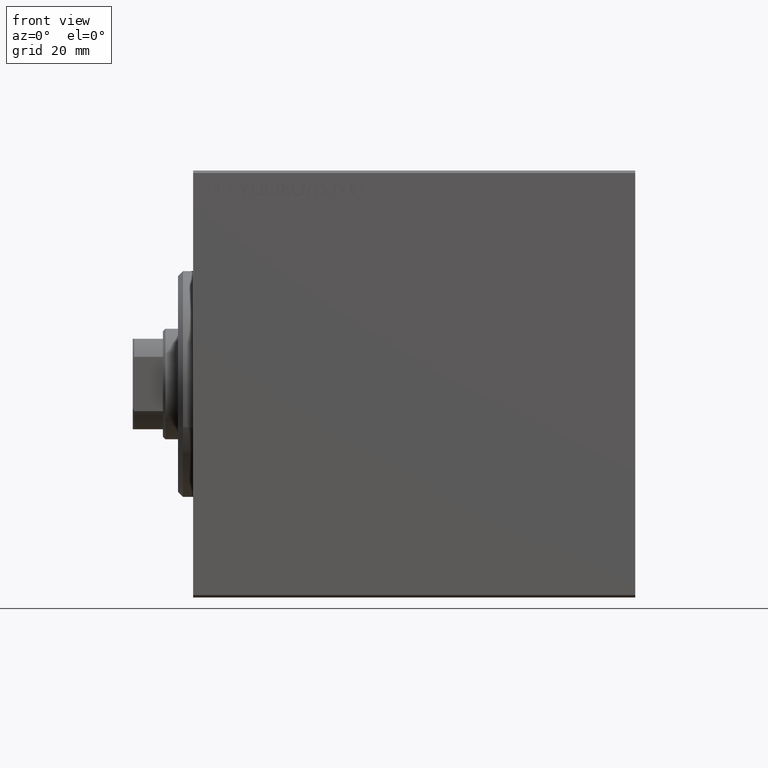
[diagram: clean part render]
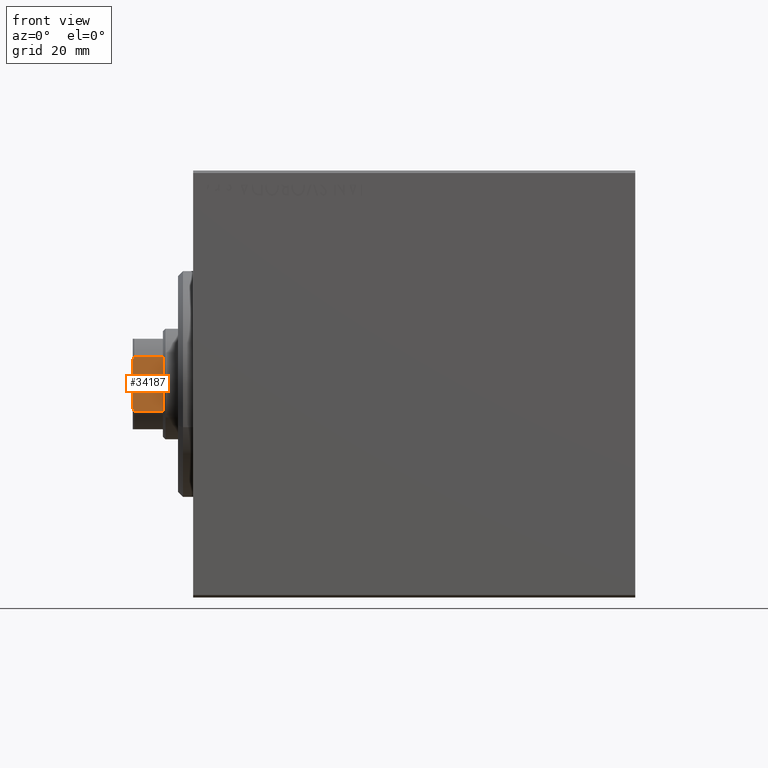
[diagram: same view with one face highlighted and labeled with its STEP entity id]
A machine part, front view. The second image highlights one B-rep face of the part: STEP entity #34187.
In plain terms, the highlighted planar face has unit normal (0, 1, 0).
Its self-contained STEP definition (entity closure, byte-faithful):
#371 = EDGE_CURVE ( 'NONE', #12914, #41400, #19274, .T. ) ;
#729 = EDGE_CURVE ( 'NONE', #8654, #41400, #8915, .T. ) ;
#1124 = CARTESIAN_POINT ( 'NONE',  ( 4.799999999999974065, -9.000000000000001776, 88.00000000000000000 ) ) ;
#1940 = CARTESIAN_POINT ( 'NONE',  ( -8.999999999999998224, -9.000000000000001776, 88.00000000000000000 ) ) ;
#3077 = ORIENTED_EDGE ( 'NONE', *, *, #32434, .T. ) ;
#5268 = LINE ( 'NONE', #5491, #18802 ) ;
#5491 = CARTESIAN_POINT ( 'NONE',  ( -5.408326913195988794, -8.999999999999998224, -0.001000000000001000089 ) ) ;
#5796 = DIRECTION ( 'NONE',  ( 0.000000000000000000, 1.000000000000000000, 0.000000000000000000 ) ) ;
#5969 = ORIENTED_EDGE ( 'NONE', *, *, #729, .T. ) ;
#8489 = EDGE_CURVE ( 'NONE', #25368, #8654, #9348, .T. ) ;
#8654 = VERTEX_POINT ( 'NONE', #40914 ) ;
#8729 = VECTOR ( 'NONE', #39970, 1000.000000000000000 ) ;
#8915 = B_SPLINE_CURVE_WITH_KNOTS ( 'NONE', 3,
 ( #41873, #27864, #10959, #38755 ),
 .UNSPECIFIED., .F., .F.,
 ( 4, 4 ),
 ( 0.000000000000000000, 0.0006782784334759612210 ),
 .UNSPECIFIED. ) ;
#9208 = AXIS2_PLACEMENT_3D ( 'NONE', #30059, #5796, #26264 ) ;
#9210 = ORIENTED_EDGE ( 'NONE', *, *, #8489, .T. ) ;
#9348 = LINE ( 'NONE', #9566, #32160 ) ;
#9566 = CARTESIAN_POINT ( 'NONE',  ( 5.408326913195988794, -8.999999999999998224, -0.001000000000001000089 ) ) ;
#9788 = PLANE ( 'NONE',  #9208 ) ;
#10738 = VECTOR ( 'NONE', #31523, 1000.000000000000000 ) ;
#10959 = CARTESIAN_POINT ( 'NONE',  ( 5.004607318780291081, -9.000000000000001776, 87.90371420292690630 ) ) ;
#12506 = CARTESIAN_POINT ( 'NONE',  ( -5.207299490555458377, -9.000000000000001776, 87.80354495430066208 ) ) ;
#12914 = VERTEX_POINT ( 'NONE', #37964 ) ;
#14316 = CARTESIAN_POINT ( 'NONE',  ( -5.408326913195988794, -8.999999999999998224, 87.69999999999997442 ) ) ;
#15007 = EDGE_CURVE ( 'NONE', #20158, #42826, #5268, .T. ) ;
#17267 = CARTESIAN_POINT ( 'NONE',  ( -8.999999999999998224, -9.000000000000001776, 81.99999999999998579 ) ) ;
#18599 = CARTESIAN_POINT ( 'NONE',  ( -5.408326913195988794, -8.999999999999998224, 81.99999999999997158 ) ) ;
#18802 = VECTOR ( 'NONE', #19071, 1000.000000000000000 ) ;
#18920 = DIRECTION ( 'NONE',  ( -0.000000000000000000, -0.000000000000000000, 1.000000000000000000 ) ) ;
#19071 = DIRECTION ( 'NONE',  ( -0.000000000000000000, -0.000000000000000000, 1.000000000000000000 ) ) ;
#19274 = LINE ( 'NONE', #1940, #8729 ) ;
#20158 = VERTEX_POINT ( 'NONE', #18599 ) ;
#21848 = CARTESIAN_POINT ( 'NONE',  ( -5.408326913195988794, -8.999999999999998224, 87.69999999999997442 ) ) ;
#24840 = LINE ( 'NONE', #17267, #10738 ) ;
#25368 = VERTEX_POINT ( 'NONE', #41895 ) ;
#25406 = CARTESIAN_POINT ( 'NONE',  ( -4.799999999999956302, -9.000000000000001776, 88.00000000000000000 ) ) ;
#25946 = ORIENTED_EDGE ( 'NONE', *, *, #371, .F. ) ;
#26264 = DIRECTION ( 'NONE',  ( 0.000000000000000000, -0.000000000000000000, 1.000000000000000000 ) ) ;
#27864 = CARTESIAN_POINT ( 'NONE',  ( 5.207299490555466370, -8.999999999999998224, 87.80354495430066208 ) ) ;
#29628 = FACE_OUTER_BOUND ( 'NONE', #43903, .T. ) ;
#30059 = CARTESIAN_POINT ( 'NONE',  ( -8.999999999999998224, -9.000000000000001776, 88.00000000000000000 ) ) ;
#31523 = DIRECTION ( 'NONE',  ( 1.000000000000000000, 0.000000000000000000, 0.000000000000000000 ) ) ;
#32160 = VECTOR ( 'NONE', #18920, 1000.000000000000000 ) ;
#32434 = EDGE_CURVE ( 'NONE', #12914, #42826, #33674, .T. ) ;
#32546 = CARTESIAN_POINT ( 'NONE',  ( -5.004607318780272429, -9.000000000000001776, 87.90371420292690630 ) ) ;
#33674 = B_SPLINE_CURVE_WITH_KNOTS ( 'NONE', 3,
 ( #25406, #32546, #12506, #21848 ),
 .UNSPECIFIED., .F., .F.,
 ( 4, 4 ),
 ( 0.000000000000000000, 0.0006782784334759783514 ),
 .UNSPECIFIED. ) ;
#34187 = ADVANCED_FACE ( 'NONE', ( #29628 ), #9788, .F. ) ;
#37964 = CARTESIAN_POINT ( 'NONE',  ( -4.799999999999956302, -9.000000000000001776, 88.00000000000000000 ) ) ;
#38755 = CARTESIAN_POINT ( 'NONE',  ( 4.799999999999974065, -9.000000000000001776, 88.00000000000000000 ) ) ;
#39096 = EDGE_CURVE ( 'NONE', #20158, #25368, #24840, .T. ) ;
#39372 = ORIENTED_EDGE ( 'NONE', *, *, #39096, .T. ) ;
#39970 = DIRECTION ( 'NONE',  ( 1.000000000000000000, 0.000000000000000000, 0.000000000000000000 ) ) ;
#40914 = CARTESIAN_POINT ( 'NONE',  ( 5.408326913195988794, -8.999999999999998224, 87.69999999999997442 ) ) ;
#41400 = VERTEX_POINT ( 'NONE', #1124 ) ;
#41837 = ORIENTED_EDGE ( 'NONE', *, *, #15007, .F. ) ;
#41873 = CARTESIAN_POINT ( 'NONE',  ( 5.408326913195988794, -8.999999999999998224, 87.69999999999997442 ) ) ;
#41895 = CARTESIAN_POINT ( 'NONE',  ( 5.408326913195988794, -8.999999999999998224, 81.99999999999997158 ) ) ;
#42826 = VERTEX_POINT ( 'NONE', #14316 ) ;
#43903 = EDGE_LOOP ( 'NONE', ( #9210, #5969, #25946, #3077, #41837, #39372 ) ) ;